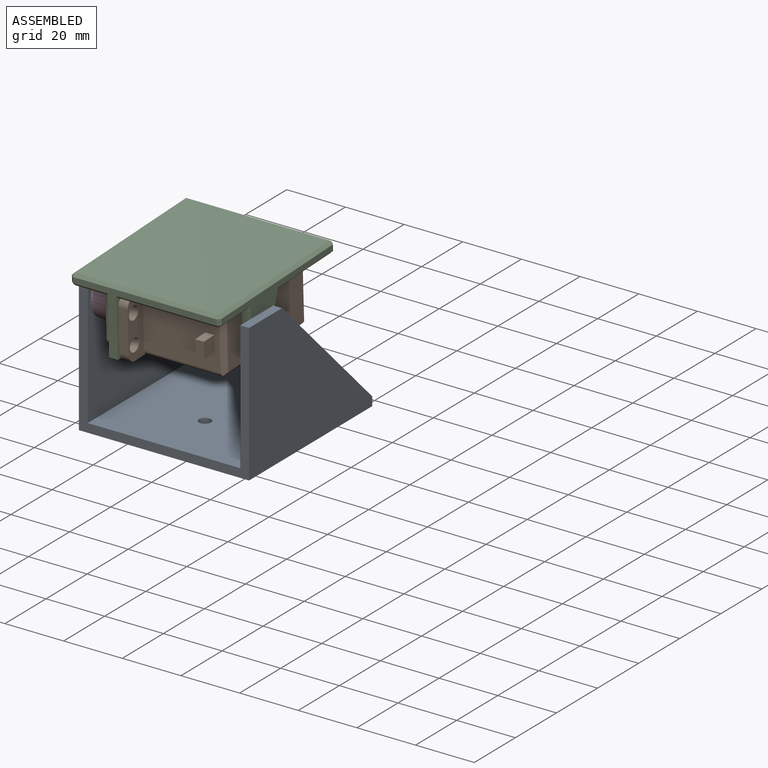
[diagram: assembled view]
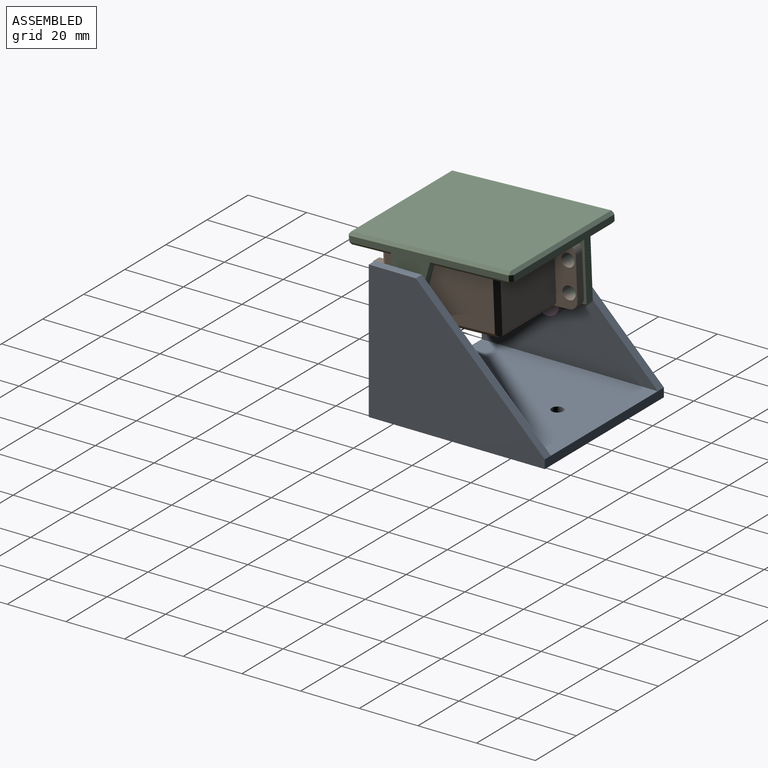
[diagram: assembled view, second angle]
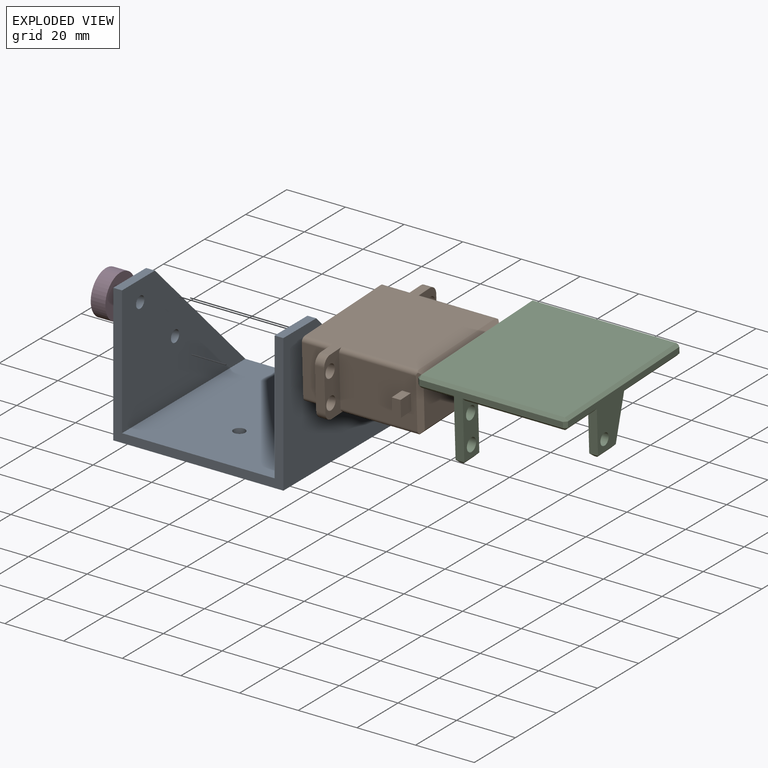
[diagram: exploded view]
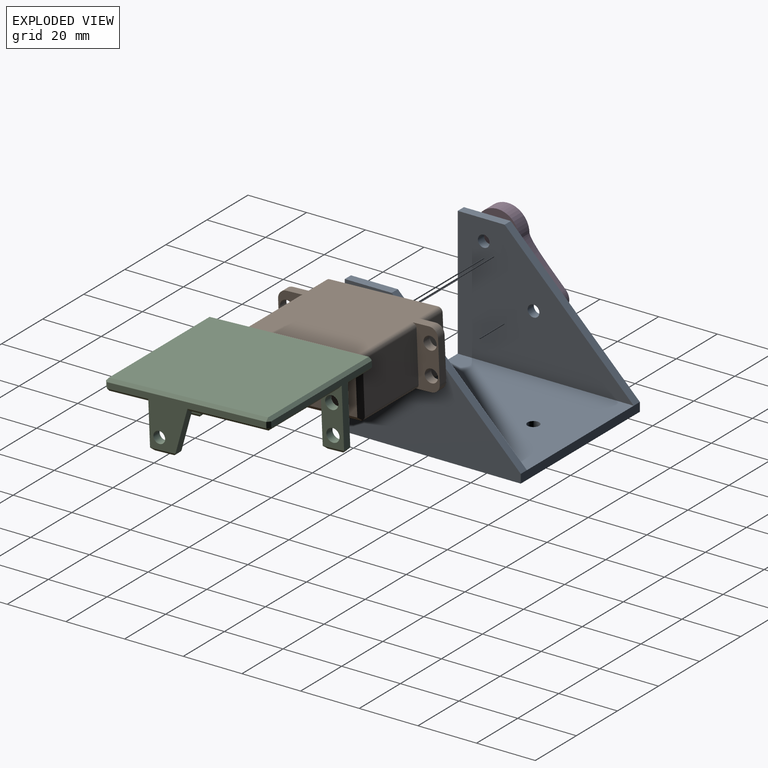
[diagram: exploded view, second angle]
ASSEMBLY  parts=4 mates=4
PART A: 18 faces, bbox 58x60x47 mm
  f0: plane 60x52mm, normal (0,0,1), area 3094.9mm2, adj f2,f4,f5,f6,f12,f15
  f1: plane 60x47mm, normal (1,0,0), area 1852mm2, adj f2,f6,f7,f13,f14
  f2: plane 58x3mm, normal (0,1,0), area 174mm2, adj f0,f1,f3,f7,f11,f13
  f3: plane 60x47mm, normal (-1,0,0), area 1826.9mm2, adj f2,f6,f7,f8,f9,f10,f11
  f4: cylinder r=2mm len=4mm, axis (0,0,-1), area 37.7mm2, adj f0,f7
  f5: cylinder r=2mm len=4mm, axis (0,0,-1), area 37.7mm2, adj f0,f7
  f6: plane 58x47mm, normal (0,-1,0), area 438mm2, adj f0,f1,f3,f7,f8,f12,f14,f15
  f7: plane 60x58mm, normal (0,0,-1), area 3454.9mm2, adj f1,f2,f3,f4,f5,f6
  f8: plane 16x3mm, normal (0,0,1), area 48mm2, adj f3,f6,f11,f12
  f9: cylinder r=2mm len=4mm, axis (-1,0,0), area 37.7mm2, adj f3,f12
  f10: cylinder r=2mm len=4mm, axis (-1,0,0), area 37.7mm2, adj f3,f12
  f11: plane 44x44mm, normal (0,0.71,0.71), area 186.7mm2, adj f2,f3,f8,f12
  f12: plane 60x44mm, normal (1,0,0), area 1646.9mm2, adj f0,f6,f8,f9,f10,f11
  f13: plane 44x44mm, normal (0,0.71,0.71), area 186.7mm2, adj f1,f2,f14,f15
  f14: plane 16x3mm, normal (0,0,1), area 48mm2, adj f1,f6,f13,f15
  f15: plane 60x44mm, normal (-1,0,0), area 1660.1mm2, adj f0,f6,f13,f14,f17
  f16: plane 3.9x3.9mm, normal (-1,0,0), area 11.9mm2, adj f17
  f17: cylinder r=1.95mm len=3.9mm, axis (1,0,0), area 42.9mm2, adj f15,f16
PART B: 41 faces, bbox 20.2x54.6x44.5 mm
  f0: plane 26.2x17.15mm, normal (0,-1,0), area 432.5mm2, adj f10,f16,f17,f18,f19,f23,f31,f32
  f1: plane 20.15x8.8mm, normal (0,0,1), area 112.3mm2, adj f2,f4,f8,f12,f27,f28,f35,f36
  f2: plane 48.59x38.9mm, normal (1,0,0), area 1475.8mm2, adj f1,f6,f9,f10,f13,f21,f25,f28
  f3: plane 26.2x17.15mm, normal (0,1,0), area 449.3mm2, adj f6,f22,f29,f30
  f4: plane 48.59x38.9mm, normal (-1,0,0), area 1475.8mm2, adj f1,f6,f9,f10,f13,f24,f26,f27
  f5: plane 37x17.15mm, normal (0,0,-1), area 634.5mm2, adj f21,f22,f23,f24
  f6: plane 20.15x8.8mm, normal (0,0,-1), area 112.3mm2, adj f2,f3,f4,f7,f29,f30,f33,f34
  f7: plane 14.15x3.15mm, normal (0,1,0), area 44.6mm2, adj f6,f9,f33,f34
  f8: plane 14.15x3.15mm, normal (0,-1,0), area 44.6mm2, adj f1,f10,f35,f36
  f9: plane 20.15x8.8mm, normal (0,0,1), area 112.3mm2, adj f2,f4,f7,f11,f25,f26,f33,f34
  f10: plane 20.15x8.8mm, normal (0,0,-1), area 112.3mm2, adj f0,f2,f4,f8,f31,f32,f35,f36
  f11: plane 17.15x9.55mm, normal (0,1,0), area 163.8mm2, adj f9,f13,f25,f26
  f12: plane 17.15x9.55mm, normal (0,-1,0), area 163.8mm2, adj f1,f13,f27,f28
  f13: plane 40x20.15mm, normal (0,0,1), area 776.7mm2, adj f2,f4,f11,f12,f14,f25,f26,f27
  f14: cylinder r=2.95mm len=5.9mm, axis (0,0,-1), area 76.4mm2, adj f13,f15
  f15: plane 5.9x5.9mm, normal (0,0,1), area 27.3mm2, adj f14
  f16: plane 5.6x5mm, normal (0,0,-1), area 28mm2, adj f0,f17,f19,f20
  f17: plane 5x3mm, normal (1,0,0), area 15mm2, adj f0,f16,f18,f20
  f18: plane 5.6x5mm, normal (0,0,1), area 28mm2, adj f0,f17,f19,f20
  f19: plane 5x3mm, normal (-1,0,0), area 15mm2, adj f0,f16,f18,f20
  f20: plane 5.6x3mm, normal (0,-1,0), area 16.8mm2, adj f16,f17,f18,f19
  f21: plane 39.12x1.5mm, normal (0.71,0,-0.71), area 81mm2, adj f2,f5,f22,f23,f29,f32
  f22: plane 19.27x1.5mm, normal (0,0.71,-0.71), area 38.9mm2, adj f3,f5,f21,f24,f29,f30
  f23: plane 19.27x1.5mm, normal (0,-0.71,-0.71), area 38.9mm2, adj f0,f5,f21,f24,f31,f32
  f24: plane 39.12x1.5mm, normal (-0.71,0,-0.71), area 81mm2, adj f4,f5,f22,f23,f30,f31
  f25: cylinder r=1.5mm len=9.55mm, axis (0,0,1), area 22.5mm2, adj f2,f9,f11,f13
  f26: cylinder r=1.5mm len=9.55mm, axis (0,0,-1), area 22.5mm2, adj f4,f9,f11,f13
  f27: cylinder r=1.5mm len=9.55mm, axis (0,0,1), area 22.5mm2, adj f1,f4,f12,f13
  f28: cylinder r=1.5mm len=9.55mm, axis (0,0,-1), area 22.5mm2, adj f1,f2,f12,f13
  f29: cylinder r=1.5mm len=26.64mm, axis (0,0,1), area 62.1mm2, adj f2,f3,f6,f21,f22
  f30: cylinder r=1.5mm len=26.64mm, axis (0,0,-1), area 62.1mm2, adj f3,f4,f6,f22,f24
  f31: cylinder r=1.5mm len=26.64mm, axis (0,0,1), area 62.1mm2, adj f0,f4,f10,f23,f24
  f32: cylinder r=1.5mm len=26.64mm, axis (0,0,-1), area 62.1mm2, adj f0,f2,f10,f21,f23
  f33: cylinder r=3mm len=3.15mm, axis (0,0,1), area 14.8mm2, adj f2,f6,f7,f9
  f34: cylinder r=3mm len=3.15mm, axis (0,0,-1), area 14.8mm2, adj f4,f6,f7,f9
  f35: cylinder r=3mm len=3.15mm, axis (0,0,1), area 14.8mm2, adj f1,f4,f8,f10
  f36: cylinder r=3mm len=3.15mm, axis (0,0,-1), area 14.8mm2, adj f1,f2,f8,f10
  f37: cylinder r=2.25mm len=4.5mm, axis (0,0,-1), area 44.5mm2, adj f1,f10
  f38: cylinder r=2.25mm len=4.5mm, axis (0,0,-1), area 44.5mm2, adj f1,f10
  f39: cylinder r=2.25mm len=4.5mm, axis (0,0,-1), area 44.5mm2, adj f6,f9
  f40: cylinder r=2.25mm len=4.5mm, axis (0,0,-1), area 44.5mm2, adj f6,f9
PART C: 58 faces, bbox 51x56.3x24 mm
  f0: plane 54.3x49mm, normal (0,0,1), area 2596.8mm2, adj f6,f7,f8,f10,f11,f12,f18,f19
  f1: plane 54.3x2mm, normal (1,0,0), area 108.6mm2, adj f26,f27,f33,f34
  f2: plane 49x22mm, normal (0,1,0), area 158mm2, adj f6,f8,f23,f27,f28,f35,f36,f49
  f3: plane 54.3x16.83mm, normal (-1,0,0), area 259.5mm2, adj f18,f19,f20,f29,f36,f39,f42,f45
  f4: plane 49x22mm, normal (0,-1,0), area 158mm2, adj f10,f11,f25,f33,f40,f41,f45,f53
  f5: plane 54.3x49mm, normal (0,0,-1), area 2660.7mm2, adj f34,f35,f41,f42
  f6: plane 20x7.3mm, normal (-1,0,0), area 107.4mm2, adj f0,f2,f7,f16,f17,f28,f48
  f7: plane 19x3mm, normal (0,-1,0), area 57mm2, adj f0,f6,f8,f46
  f8: plane 20x7.3mm, normal (1,0,0), area 107.4mm2, adj f0,f2,f7,f16,f17,f23,f47
  f9: plane 5.3x1mm, normal (0,0,1), area 5.3mm2, adj f46,f47,f48,f49
  f10: plane 20x7.3mm, normal (-1,0,0), area 107.4mm2, adj f0,f4,f12,f14,f15,f40,f52
  f11: plane 20x7.3mm, normal (1,0,0), area 107.4mm2, adj f0,f4,f12,f14,f15,f25,f51
  f12: plane 19x3mm, normal (0,1,0), area 57mm2, adj f0,f10,f11,f50
  f13: plane 5.3x1mm, normal (0,0,1), area 5.3mm2, adj f50,f51,f52,f53
  f14: cylinder r=2.25mm len=4.5mm, axis (-1,0,0), area 42.4mm2, adj f10,f11
  f15: cylinder r=2.25mm len=4.5mm, axis (-1,0,0), area 42.4mm2, adj f10,f11
  f16: cylinder r=2.25mm len=4.5mm, axis (-1,0,0), area 42.4mm2, adj f6,f8
  f17: cylinder r=2.25mm len=4.5mm, axis (-1,0,0), area 42.4mm2, adj f6,f8
  f18: plane 15.13x4.82mm, normal (0,0.95,0.3), area 44.9mm2, adj f0,f3,f22,f29,f54,f55,f57
  f19: plane 14.83x3mm, normal (0,-1,0), area 42mm2, adj f0,f3,f22,f39,f56
  f20: cylinder r=2mm len=4mm, axis (-1,0,0), area 37.7mm2, adj f3,f22
  f21: plane 6.61x1mm, normal (0,0,1), area 6.6mm2, adj f54,f55,f56,f57
  f22: plane 13.83x13.07mm, normal (1,0,0), area 137.7mm2, adj f0,f18,f19,f20,f57
  f23: plane 11.77x1mm, normal (0,0.71,0.71), area 16.6mm2, adj f0,f2,f8,f24
  f24: plane 1x1mm, normal (0.58,0.58,0.58), area 0.9mm2, adj f23,f26,f27
  f25: plane 11.77x1mm, normal (0,-0.71,0.71), area 16.6mm2, adj f0,f4,f11,f30
  f26: plane 54.3x1mm, normal (0.71,0,0.71), area 76.8mm2, adj f0,f1,f24,f30
  f27: plane 2x1mm, normal (0.71,0.71,0), area 2.8mm2, adj f1,f2,f24,f31
  f28: plane 34.23x1mm, normal (0,0.71,0.71), area 48.4mm2, adj f0,f2,f6,f32
  f29: plane 27.25x1mm, normal (-0.71,0,0.71), area 38.3mm2, adj f0,f3,f18,f32
  f30: plane 1x1mm, normal (0.58,-0.58,0.58), area 0.9mm2, adj f25,f26,f33
  f31: plane 1x1mm, normal (0.58,0.58,-0.58), area 0.9mm2, adj f27,f34,f35
  f32: plane 1x1mm, normal (-0.58,0.58,0.58), area 0.9mm2, adj f28,f29,f36
  f33: plane 2x1mm, normal (0.71,-0.71,0), area 2.8mm2, adj f1,f4,f30,f37
  f34: plane 54.3x1mm, normal (0.71,0,-0.71), area 76.8mm2, adj f1,f5,f31,f37
  f35: plane 49x1mm, normal (0,0.71,-0.71), area 69.3mm2, adj f2,f5,f31,f38
  f36: plane 2x1mm, normal (-0.71,0.71,0), area 2.8mm2, adj f2,f3,f32,f38
  f37: plane 1x1mm, normal (0.58,-0.58,-0.58), area 0.9mm2, adj f33,f34,f41
  f38: plane 1x1mm, normal (-0.58,0.58,-0.58), area 0.9mm2, adj f35,f36,f42
  f39: plane 13.99x1mm, normal (-0.71,0,0.71), area 19.8mm2, adj f0,f3,f19,f43
  f40: plane 34.23x1mm, normal (0,-0.71,0.71), area 48.4mm2, adj f0,f4,f10,f43
  f41: plane 49x1mm, normal (0,-0.71,-0.71), area 69.3mm2, adj f4,f5,f37,f44
  f42: plane 54.3x1mm, normal (-0.71,0,-0.71), area 76.8mm2, adj f3,f5,f38,f44
  f43: plane 1x1mm, normal (-0.58,-0.58,0.58), area 0.9mm2, adj f39,f40,f45
  f44: plane 1x1mm, normal (-0.58,-0.58,-0.58), area 0.9mm2, adj f41,f42,f45
  f45: plane 2x1mm, normal (-0.71,-0.71,0), area 2.8mm2, adj f3,f4,f43,f44
  f46: plane 3x1mm, normal (0,-0.71,0.71), area 2.8mm2, adj f7,f9,f47,f48
  f47: plane 7.3x1mm, normal (0.71,0,0.71), area 8.9mm2, adj f8,f9,f46,f49
  f48: plane 7.3x1mm, normal (-0.71,0,0.71), area 8.9mm2, adj f6,f9,f46,f49
  f49: plane 3x1mm, normal (0,0.71,0.71), area 2.8mm2, adj f2,f9,f47,f48
  f50: plane 3x1mm, normal (0,0.71,0.71), area 2.8mm2, adj f12,f13,f51,f52
  f51: plane 7.3x1mm, normal (0.71,0,0.71), area 8.9mm2, adj f11,f13,f50,f53
  f52: plane 7.3x1mm, normal (-0.71,0,0.71), area 8.9mm2, adj f10,f13,f50,f53
  f53: plane 3x1mm, normal (0,-0.71,0.71), area 2.8mm2, adj f4,f13,f51,f52
  f54: plane 8.66x1mm, normal (-0.71,0,0.71), area 11mm2, adj f3,f18,f21,f55,f56
  f55: plane 2.39x0.95mm, normal (0,0.59,0.81), area 2mm2, adj f18,f21,f54,f57
  f56: plane 3x1mm, normal (0,-0.71,0.71), area 2.8mm2, adj f19,f21,f54,f57
  f57: plane 8.66x1mm, normal (0.71,0,0.71), area 11mm2, adj f18,f21,f22,f55,f56
PART D: 8 faces, bbox 14.8x35.4x5 mm
  f0: cylinder r=7.4mm len=14.8mm, axis (0,0,-1), area 174.4mm2, adj f1,f3,f4,f5
  f1: extruded ~18.77x5mm, area 94.5mm2, adj f0,f2,f4,f5
  f2: cylinder r=4mm len=8mm, axis (0,0,-1), area 62.8mm2, adj f1,f3,f4,f5
  f3: extruded ~18.77x5mm, area 94.5mm2, adj f0,f2,f4,f5
  f4: plane 35.4x14.8mm, normal (0,0,1), area 303.4mm2, adj f0,f1,f2,f3,f6,f7
  f5: plane 35.4x14.8mm, normal (0,0,-1), area 303.4mm2, adj f0,f1,f2,f3,f6,f7
  f6: cylinder r=1.62mm len=5mm, axis (0,0,-1), area 51.1mm2, adj f4,f5
  f7: cylinder r=2.95mm len=5.9mm, axis (0,0,-1), area 92.7mm2, adj f4,f5
PLACE A t=(-25.42,3.74,-26.55)mm
PLACE B rot(axis=(0.02,-1,-0.02),90deg) t=(-4.02,-7.42,13.86)mm
PLACE C rot(axis=(0,-1,-0.02),180deg) t=(-25.14,-7.99,27.85)mm
PLACE D rot(axis=(-0.36,0.86,-0.36),98.4deg) t=(-51.42,-17.41,13.45)mm
MATE fastened C.f16 <-> B.f40  axis (1,0,0) through (-34.87,17.27,9.87)mm
MATE revolute B.f14 <-> D.f0  axis (-1,0,0) through (-44.42,-17.41,13.45)mm
MATE revolute D.f7 <-> A.f17  axis (-1,0,0) through (-51.42,-17.41,13.45)mm
MATE revolute D.f2 <-> A.f9  axis (-1,0,0) through (-51.42,-0.44,-3.52)mm
